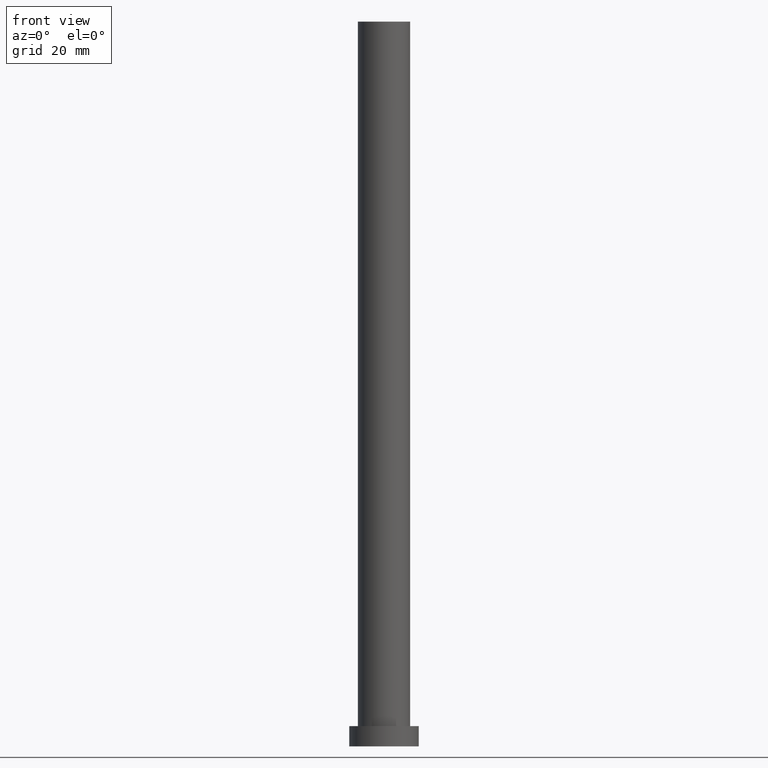
[diagram: clean part render]
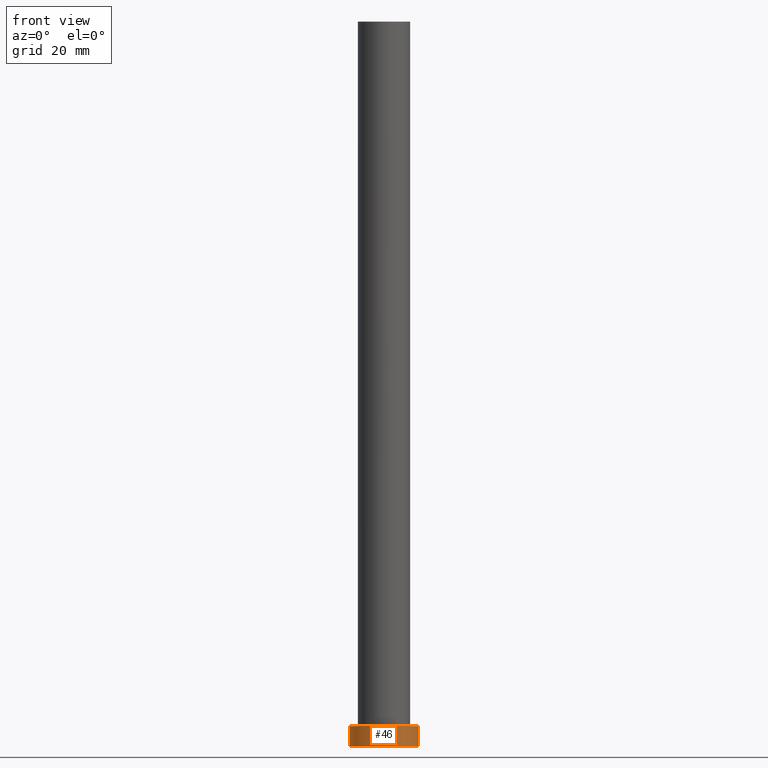
[diagram: same view with one face highlighted and labeled with its STEP entity id]
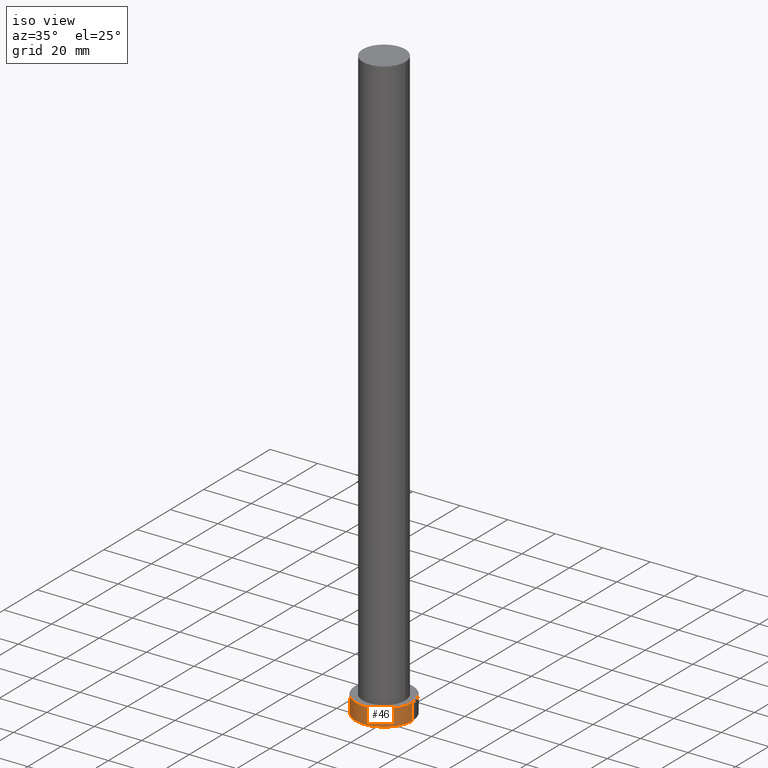
[diagram: same view with one face highlighted and labeled with its STEP entity id]
A machine part, front view. The second image highlights one B-rep face of the part: STEP entity #46.
A second angle (iso view) of the same face is appended — the face is thin or edge-on in the first view.
In plain terms, the highlighted cylindrical surface (edge-blend (fillet) strip) has radius 12 mm, axis along (-0, -0, -1).
Its self-contained STEP definition (entity closure, byte-faithful):
#4 = DIRECTION ( 'NONE',  ( -0.000000000000000000, -0.000000000000000000, -1.000000000000000000 ) ) ;
#6 = CARTESIAN_POINT ( 'NONE',  ( -12.00000000000000178, 0.000000000000000000, 7.000000000000000000 ) ) ;
#23 = EDGE_CURVE ( 'NONE', #137, #114, #89, .T. ) ;
#24 = CARTESIAN_POINT ( 'NONE',  ( 12.00000000000000178, 1.469576158976824144E-15, 7.000000000000000000 ) ) ;
#31 = ORIENTED_EDGE ( 'NONE', *, *, #188, .F. ) ;
#33 = VERTEX_POINT ( 'NONE', #153 ) ;
#36 = DIRECTION ( 'NONE',  ( 1.000000000000000000, 0.000000000000000000, 0.000000000000000000 ) ) ;
#37 = AXIS2_PLACEMENT_3D ( 'NONE', #253, #96, #38 ) ;
#38 = DIRECTION ( 'NONE',  ( -1.000000000000000000, 0.000000000000000000, 0.000000000000000000 ) ) ;
#43 = CARTESIAN_POINT ( 'NONE',  ( -12.00000000000000178, 0.000000000000000000, 7.000000000000000000 ) ) ;
#46 = ADVANCED_FACE ( 'NONE', ( #170 ), #56, .T. ) ;
#49 = ORIENTED_EDGE ( 'NONE', *, *, #23, .F. ) ;
#56 = CYLINDRICAL_SURFACE ( 'NONE', #37, 12.00000000000000178 ) ;
#58 = CARTESIAN_POINT ( 'NONE',  ( -12.00000000000000178, 0.000000000000000000, 0.000000000000000000 ) ) ;
#69 = CARTESIAN_POINT ( 'NONE',  ( 0.000000000000000000, 0.000000000000000000, 7.000000000000000000 ) ) ;
#77 = VECTOR ( 'NONE', #4, 1000.000000000000000 ) ;
#89 = CIRCLE ( 'NONE', #172, 12.00000000000000178 ) ;
#93 = ORIENTED_EDGE ( 'NONE', *, *, #226, .T. ) ;
#94 = EDGE_LOOP ( 'NONE', ( #31, #49, #151, #93 ) ) ;
#96 = DIRECTION ( 'NONE',  ( -0.000000000000000000, -0.000000000000000000, -1.000000000000000000 ) ) ;
#104 = DIRECTION ( 'NONE',  ( -0.000000000000000000, -0.000000000000000000, -1.000000000000000000 ) ) ;
#109 = EDGE_CURVE ( 'NONE', #137, #229, #174, .T. ) ;
#114 = VERTEX_POINT ( 'NONE', #140 ) ;
#120 = LINE ( 'NONE', #24, #77 ) ;
#127 = VECTOR ( 'NONE', #104, 1000.000000000000000 ) ;
#137 = VERTEX_POINT ( 'NONE', #6 ) ;
#140 = CARTESIAN_POINT ( 'NONE',  ( 12.00000000000000178, 1.469576158976824144E-15, 7.000000000000000000 ) ) ;
#151 = ORIENTED_EDGE ( 'NONE', *, *, #109, .T. ) ;
#152 = DIRECTION ( 'NONE',  ( 0.000000000000000000, 0.000000000000000000, 1.000000000000000000 ) ) ;
#153 = CARTESIAN_POINT ( 'NONE',  ( 12.00000000000000178, 1.469576158976824144E-15, 0.000000000000000000 ) ) ;
#170 = FACE_OUTER_BOUND ( 'NONE', #94, .T. ) ;
#172 = AXIS2_PLACEMENT_3D ( 'NONE', #69, #152, #36 ) ;
#174 = LINE ( 'NONE', #43, #127 ) ;
#188 = EDGE_CURVE ( 'NONE', #114, #33, #120, .T. ) ;
#197 = CIRCLE ( 'NONE', #217, 12.00000000000000178 ) ;
#217 = AXIS2_PLACEMENT_3D ( 'NONE', #240, #243, #218 ) ;
#218 = DIRECTION ( 'NONE',  ( 1.000000000000000000, 0.000000000000000000, 0.000000000000000000 ) ) ;
#226 = EDGE_CURVE ( 'NONE', #229, #33, #197, .T. ) ;
#229 = VERTEX_POINT ( 'NONE', #58 ) ;
#240 = CARTESIAN_POINT ( 'NONE',  ( 0.000000000000000000, 0.000000000000000000, 0.000000000000000000 ) ) ;
#243 = DIRECTION ( 'NONE',  ( 0.000000000000000000, 0.000000000000000000, 1.000000000000000000 ) ) ;
#253 = CARTESIAN_POINT ( 'NONE',  ( 0.000000000000000000, 0.000000000000000000, 7.000000000000000000 ) ) ;